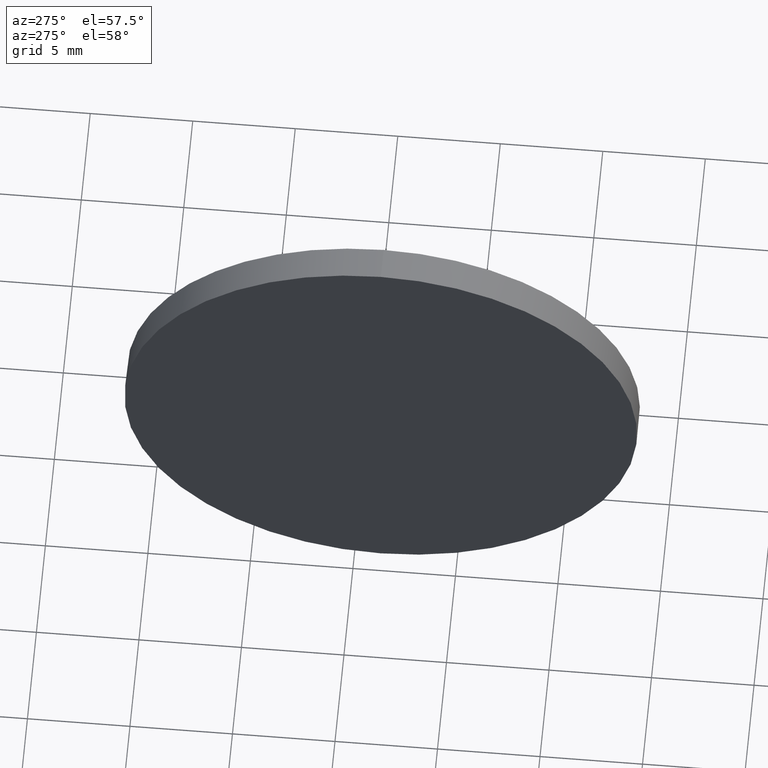
[diagram: clean part render]
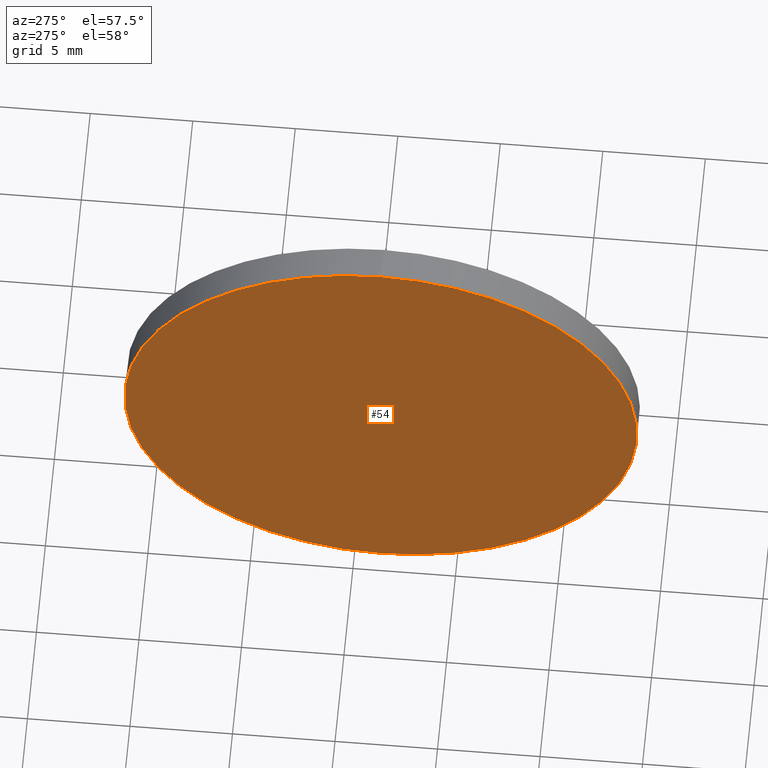
[diagram: same view with one face highlighted and labeled with its STEP entity id]
A machine part, auxiliary view. The second image highlights one B-rep face of the part: STEP entity #54.
In plain terms, the highlighted planar face has unit normal (1, 0, 0).
Its self-contained STEP definition (entity closure, byte-faithful):
#18 = PLANE ( 'NONE',  #127 ) ;
#36 = DIRECTION ( 'NONE',  ( 0.0000000000000000000, 0.0000000000000000000, 1.000000000000000000 ) ) ;
#53 = CARTESIAN_POINT ( 'NONE',  ( 700.6482137822092700, 248.6989515339254200, 0.0000000000000000000 ) ) ;
#54 = ADVANCED_FACE ( 'NONE', ( #132 ), #18, .F. ) ;
#56 = DIRECTION ( 'NONE',  ( 0.0000000000000000000, 0.0000000000000000000, -1.000000000000000000 ) ) ;
#73 = AXIS2_PLACEMENT_3D ( 'NONE', #110, #149, #36 ) ;
#74 = VERTEX_POINT ( 'NONE', #163 ) ;
#78 = ORIENTED_EDGE ( 'NONE', *, *, #96, .T. ) ;
#88 = ORIENTED_EDGE ( 'NONE', *, *, #136, .T. ) ;
#96 = EDGE_CURVE ( 'NONE', #74, #152, #158, .T. ) ;
#110 = CARTESIAN_POINT ( 'NONE',  ( 700.6482137822092700, 248.6989515339254200, 0.0000000000000000000 ) ) ;
#127 = AXIS2_PLACEMENT_3D ( 'NONE', #53, #173, #56 ) ;
#132 = FACE_OUTER_BOUND ( 'NONE', #143, .T. ) ;
#136 = EDGE_CURVE ( 'NONE', #152, #74, #147, .T. ) ;
#140 = DIRECTION ( 'NONE',  ( -1.000000000000000000, -0.0000000000000000000, -0.0000000000000000000 ) ) ;
#143 = EDGE_LOOP ( 'NONE', ( #88, #78 ) ) ;
#147 = CIRCLE ( 'NONE', #165, 12.49999999999998400 ) ;
#149 = DIRECTION ( 'NONE',  ( -1.000000000000000000, -0.0000000000000000000, -0.0000000000000000000 ) ) ;
#152 = VERTEX_POINT ( 'NONE', #157 ) ;
#154 = DIRECTION ( 'NONE',  ( 0.0000000000000000000, 0.0000000000000000000, 1.000000000000000000 ) ) ;
#157 = CARTESIAN_POINT ( 'NONE',  ( 700.6482137822092700, 248.6989515339254200, 12.49999999999998400 ) ) ;
#158 = CIRCLE ( 'NONE', #73, 12.49999999999998400 ) ;
#163 = CARTESIAN_POINT ( 'NONE',  ( 700.6482137822092700, 248.6989515339254200, -12.49999999999998400 ) ) ;
#165 = AXIS2_PLACEMENT_3D ( 'NONE', #182, #140, #154 ) ;
#173 = DIRECTION ( 'NONE',  ( 1.000000000000000000, 0.0000000000000000000, 0.0000000000000000000 ) ) ;
#182 = CARTESIAN_POINT ( 'NONE',  ( 700.6482137822092700, 248.6989515339254200, 0.0000000000000000000 ) ) ;